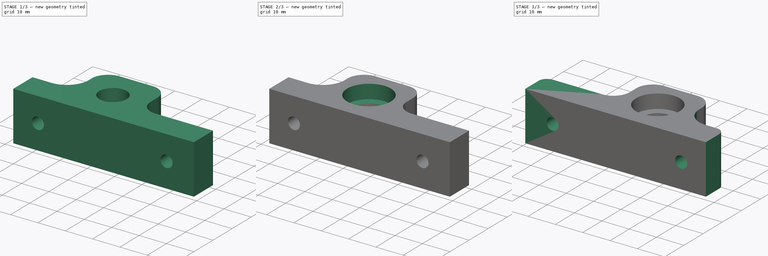
[diagram: build sequence overview — one tinted view per stage of 3, left to right]
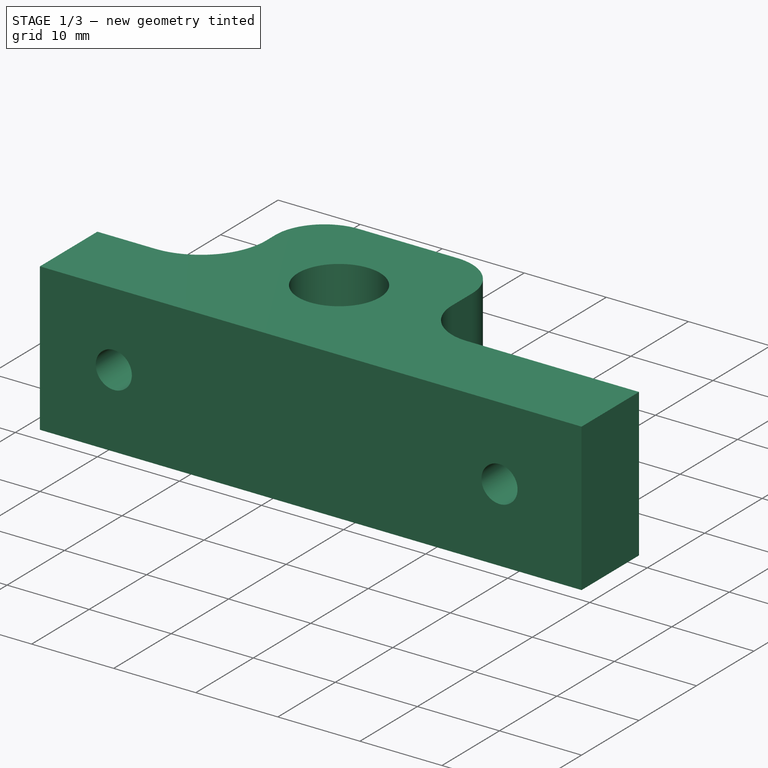
[diagram: stage 1 of 3 — iso view after this stage's code; geometry added in this stage tinted green]
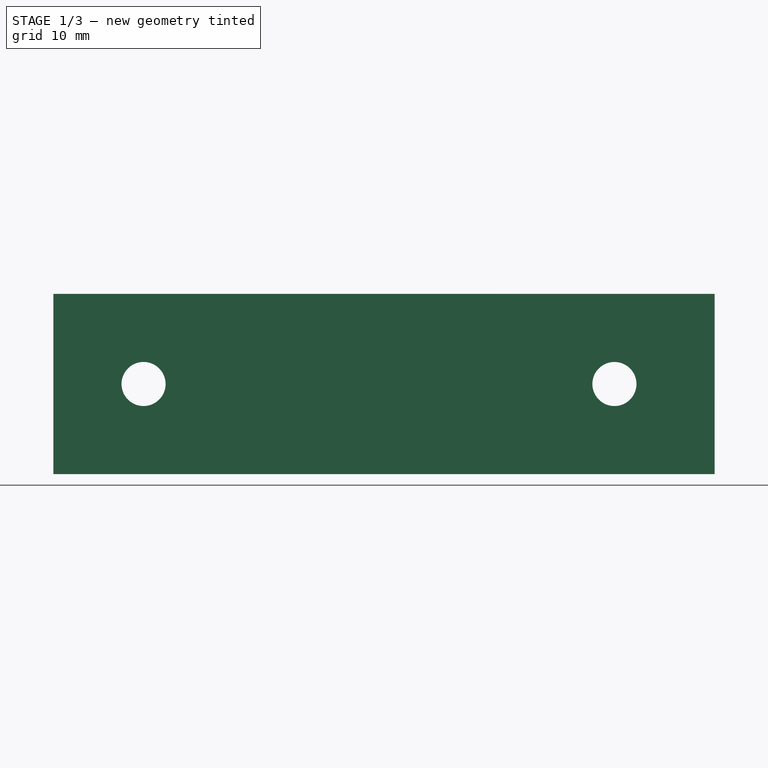
[diagram: stage 1 of 3 — front view after this stage's code; geometry added in this stage tinted green]
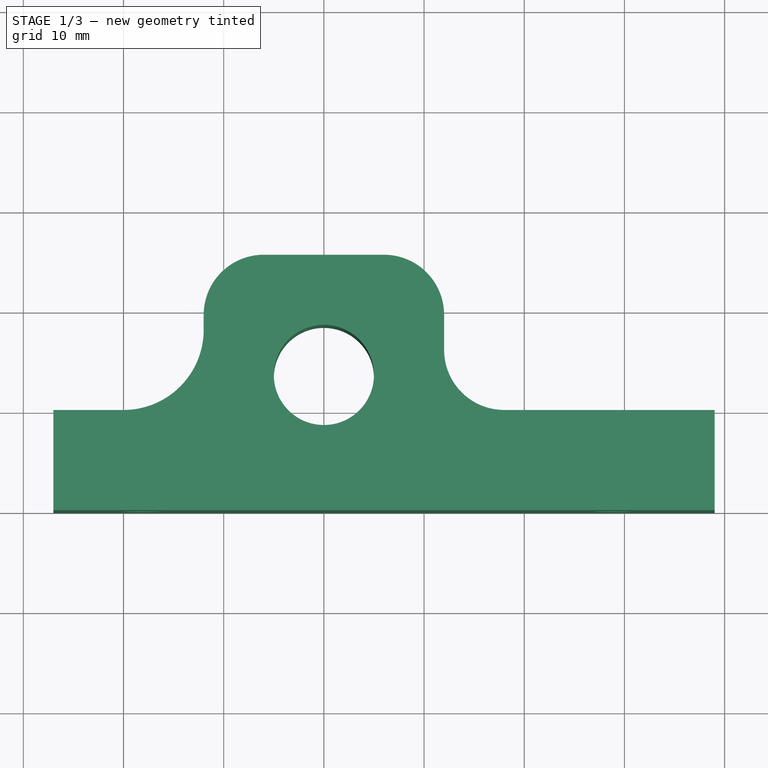
[diagram: stage 1 of 3 — top view after this stage's code; geometry added in this stage tinted green]
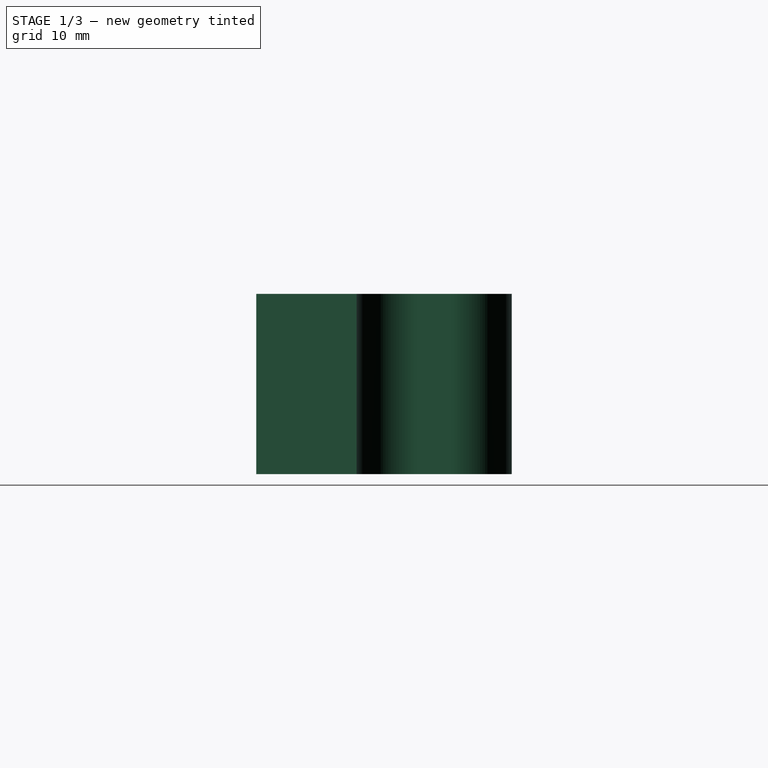
[diagram: stage 1 of 3 — right view after this stage's code; geometry added in this stage tinted green]
FCSTD DOCUMENT  (FreeCAD 0.17R5235 (Git shallow))
Label: C1061-4
License: CC-BY 3.0
LicenseURL: http://creativecommons.org/licenses/by/3.0/
objects: Sketcher::SketchObject×4, PartDesign::Pocket×3, App::Part×2, PartDesign::Pad×1, PartDesign::Fillet×1, PartDesign::Body×1, Part::Mirroring×1
note: 15 computed .brp shape members not serialized (recipe doc carries the construction recipe); baked Part::Feature solids carry a one-line shape summary decoded from their .brp

FEATURE [Sketcher::SketchObject] Sketch  label="baseShapeSketch"
  MapMode = 5
  Support = -> [XY_Plane001]
  sketch-geometry (14):
    g0: LineSegment StartX=-6 StartY=25.5 StartZ=0 EndX=6 EndY=25.5 EndZ=0
    g1: LineSegment StartX=12 StartY=19.5 StartZ=0 EndX=12 EndY=16 EndZ=0
    g2: LineSegment StartX=-27 StartY=10 StartZ=0 EndX=-20 EndY=10 EndZ=0
    g3: LineSegment StartX=39 StartY=10 StartZ=0 EndX=39 EndY=0 EndZ=0
    g4: LineSegment StartX=-27 StartY=0 StartZ=0 EndX=-27 EndY=10 EndZ=0
    g5: LineSegment StartX=18 StartY=10 StartZ=0 EndX=39 EndY=10 EndZ=0
    g6: LineSegment StartX=-12 StartY=18 StartZ=0 EndX=-12 EndY=19.5 EndZ=0
    g7: LineSegment StartX=39 StartY=0 StartZ=0 EndX=-27 EndY=0 EndZ=0
    g8: Circle [constr] CenterX=0 CenterY=13.5 CenterZ=0 NormalX=0 NormalY=0 NormalZ=1 AngleXU=0 Radius=8
    g9: Circle CenterX=0 CenterY=13.5 CenterZ=0 NormalX=0 NormalY=0 NormalZ=1 AngleXU=0 Radius=5
    g10: ArcOfCircle CenterX=18 CenterY=16 CenterZ=0 NormalX=0 NormalY=0 NormalZ=1 AngleXU=0 Radius=6 StartAngle=3.14159 EndAngle=4.71239
    g11: ArcOfCircle CenterX=-20 CenterY=18 CenterZ=0 NormalX=0 NormalY=0 NormalZ=1 AngleXU=0 Radius=8 StartAngle=4.71239 EndAngle=6.28319
    g12: ArcOfCircle CenterX=6 CenterY=19.5 CenterZ=0 NormalX=0 NormalY=0 NormalZ=1 AngleXU=0 Radius=6 StartAngle=0 EndAngle=1.5708
    g13: ArcOfCircle CenterX=-6 CenterY=19.5 CenterZ=0 NormalX=0 NormalY=0 NormalZ=1 AngleXU=0 Radius=6 StartAngle=1.5708 EndAngle=3.14159
  constraints (37):
    c: Horizontal(g0)
    c: Coincident(g5,g3)
    c: Coincident(g7,g4)
    c: Coincident(g4,g2)
    c: Horizontal(g2)
    c: Vertical(g3)
    c: Vertical(g4)
    c: Horizontal(g5)
    c: Vertical(g6)
    c: Horizontal(g7)
    c: PointOnObject(g8,g-2)
    c: Equal(g3,g4)
    c: Radius(g8) = 8
    c: Coincident(g9,g8)
    c: Radius(g9) = 5
    c: DistanceY(g3) = -10
    c: Tangent(g1,g10)
    c: Tangent(g5,g10)
    c: Tangent(g2,g11)
    c: Tangent(g6,g11)
    c: Tangent(g0,g12)
    c: Tangent(g1,g12)
    c: Tangent(g0,g13)
    c: Tangent(g6,g13)
    c: Radius(g13) = 6
    c: Equal(g12,g13)
    c: DistanceY(g0,g8) = -12
    c: Coincident(g7,g3)
    c: PointOnObject(g3,g-1)
    c: DistanceX(g6,g2) = -15
    c: Vertical(g1)
    c: DistanceX(g6,g8) = 12
    c: Radius(g11) = 8
    c: DistanceX(g8,g3) = 39
    c: DistanceX(g8,g1) = 12
    c: Radius(g10) = 6
    c: DistanceY(g-1,g8) = 13.5
FEATURE [PartDesign::Pad] Pad  label="baseShape"
  Length = 18
  Length2 = 10
  Midplane = true
  Profile = -> Sketch
  Type = 0
FEATURE [Sketcher::SketchObject] Sketch005  label="M4HolesSketch"
  ExternalGeometry = -> [Pad]
  MapMode = 5
  Placement = pos=(0,0,0) rot=(1,0,0;1.5708rad)
  Support = -> [Pad]
  sketch-geometry (2):
    g0: Circle CenterX=29 CenterY=0 CenterZ=0 NormalX=0 NormalY=0 NormalZ=1 AngleXU=0 Radius=2.2
    g1: Circle CenterX=-18 CenterY=0 CenterZ=0 NormalX=0 NormalY=0 NormalZ=1 AngleXU=0 Radius=2.2
  constraints (6):
    c: PointOnObject(g0,g-1)
    c: Equal(g0,g1)
    c: Radius(g1) = 2.2
    c: PointOnObject(g1,g-1)
    c: DistanceX(g0,g-4) = 10
    c: DistanceX(g-3,g1) = 9
FEATURE [PartDesign::Pocket] Pocket  label="M4HolesPocket"
  BaseFeature = -> Pad
  Length = 5
  Length2 = 100
  Profile = -> Sketch005
  Type = 1
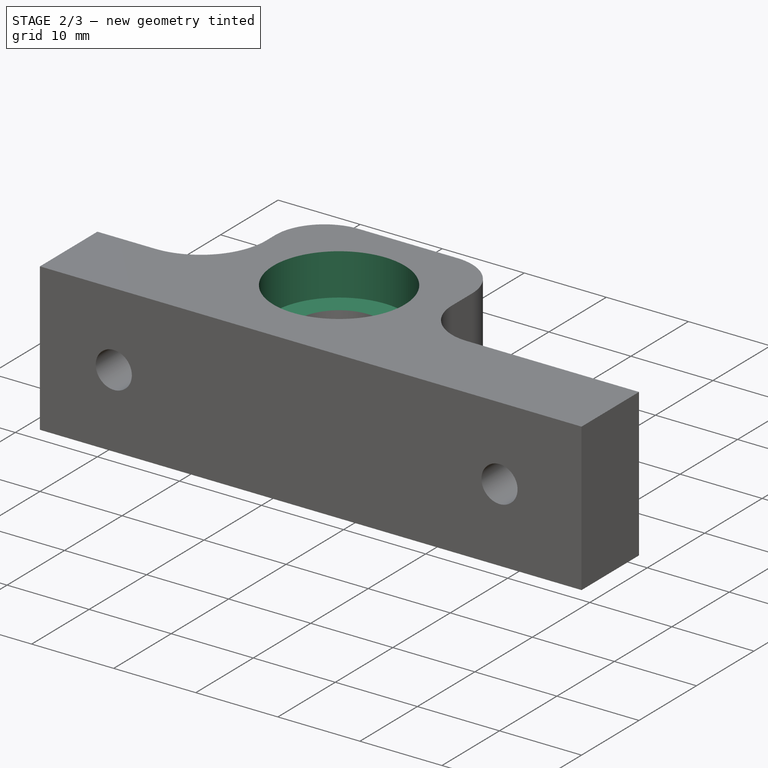
[diagram: stage 2 of 3 — iso view after this stage's code; geometry added in this stage tinted green]
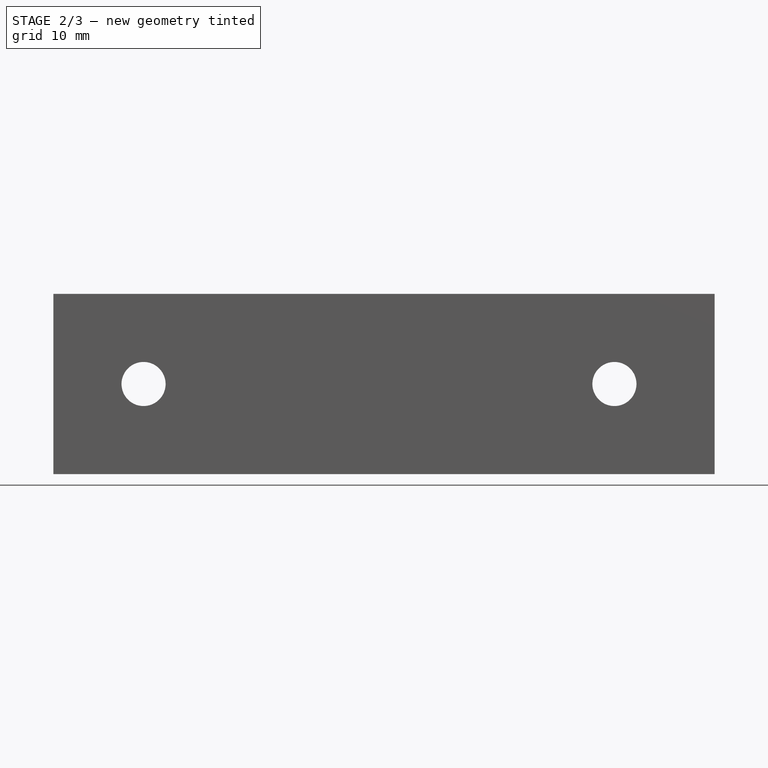
[diagram: stage 2 of 3 — front view after this stage's code; geometry added in this stage tinted green]
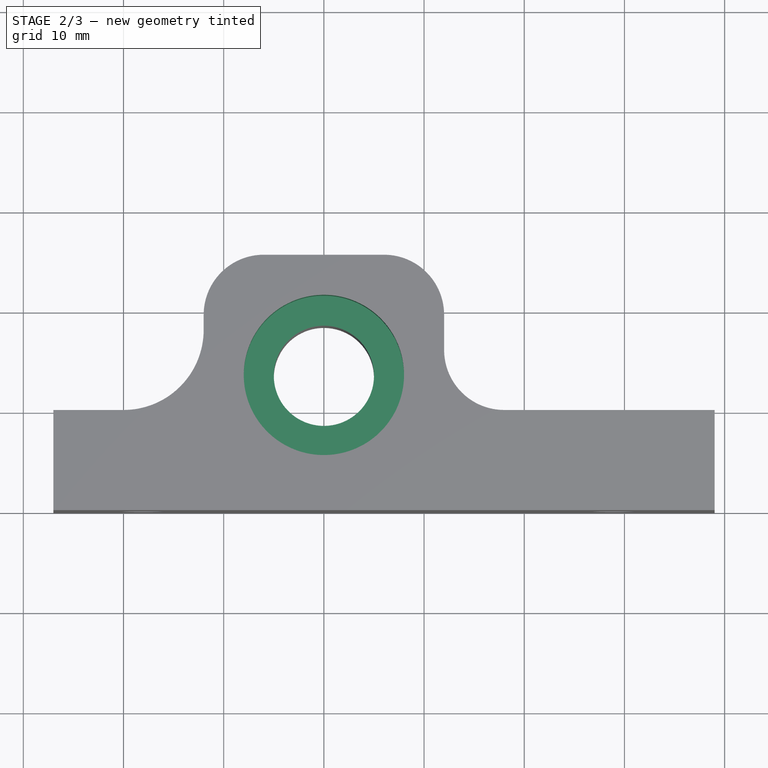
[diagram: stage 2 of 3 — top view after this stage's code; geometry added in this stage tinted green]
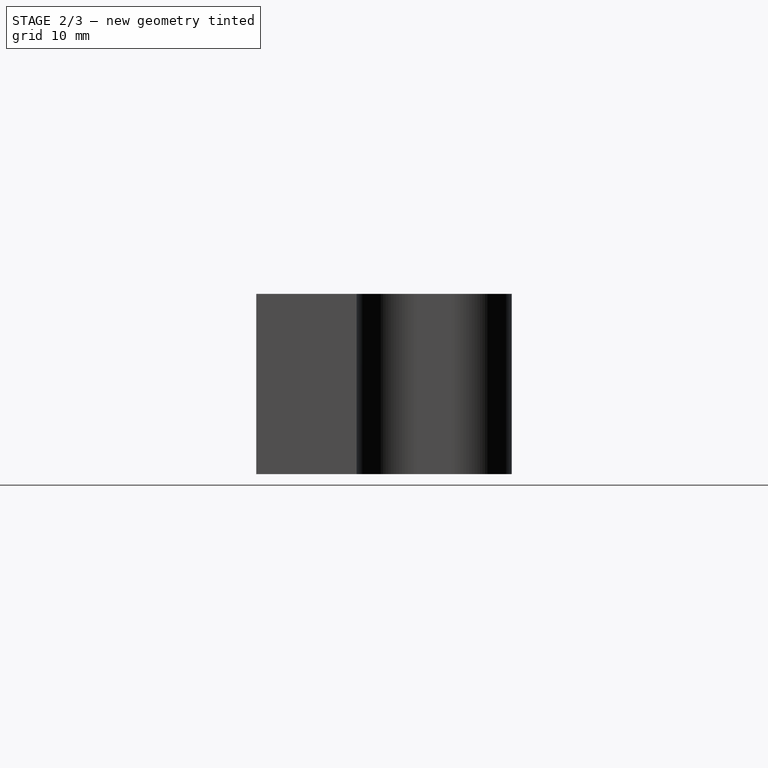
[diagram: stage 2 of 3 — right view after this stage's code; geometry added in this stage tinted green]
FEATURE [Sketcher::SketchObject] Sketch006  label="bearingPocketSketch"
  ExternalGeometry = -> [Pocket]
  MapMode = 5
  Placement = pos=(0,0,9) rot=(0,0,1;0rad)
  Support = -> [Pocket]
  sketch-geometry (1):
    g0: Circle CenterX=0 CenterY=13.5 CenterZ=0 NormalX=0 NormalY=0 NormalZ=1 AngleXU=0 Radius=8
  constraints (2):
    c: Coincident(g0,g-3)
    c: Radius(g0) = 8
FEATURE [PartDesign::Pocket] Pocket001  label="BallBearingPocket"
  BaseFeature = -> Pocket
  Length = 5.1
  Length2 = 100
  Profile = -> Sketch006
  Type = 0
FEATURE [Sketcher::SketchObject] Sketch007  label="M4CountersinkSketch"
  ExternalGeometry = -> [Pocket001]
  MapMode = 5
  Placement = pos=(0,10,0) rot=(0,0.707107,0.707107;3.14159rad)
  Support = -> [Pocket001]
  sketch-geometry (2):
    g0: Circle CenterX=18 CenterY=0 CenterZ=0 NormalX=0 NormalY=0 NormalZ=1 AngleXU=0 Radius=4.125
    g1: Circle CenterX=-29 CenterY=0 CenterZ=0 NormalX=0 NormalY=0 NormalZ=1 AngleXU=0 Radius=4.125
  constraints (6):
    c: PointOnObject(g0,g-1)
    c: DistanceX(g0,g-3) = 9
    c: PointOnObject(g1,g-1)
    c: Coincident(g1,g-4)
    c: Equal(g1,g0)
    c: Radius(g1) = 4.125
FEATURE [PartDesign::Pocket] Pocket002  label="HeadCapPocket"
  BaseFeature = -> Pocket001
  Length = 8.4
  Length2 = 100
  Midplane = true
  Profile = -> Sketch007
  Type = 0
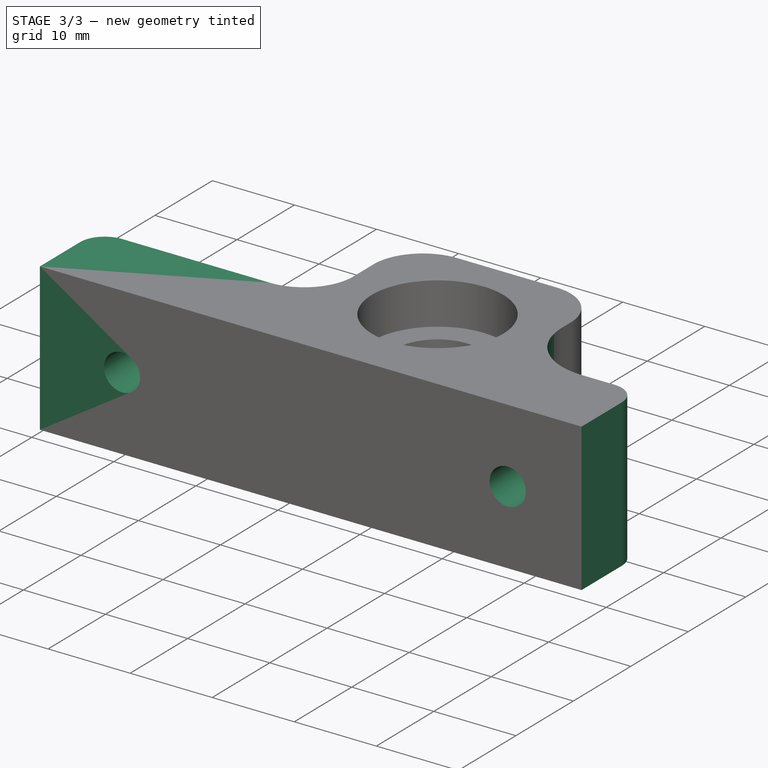
[diagram: stage 3 of 3 — iso view after this stage's code; geometry added in this stage tinted green]
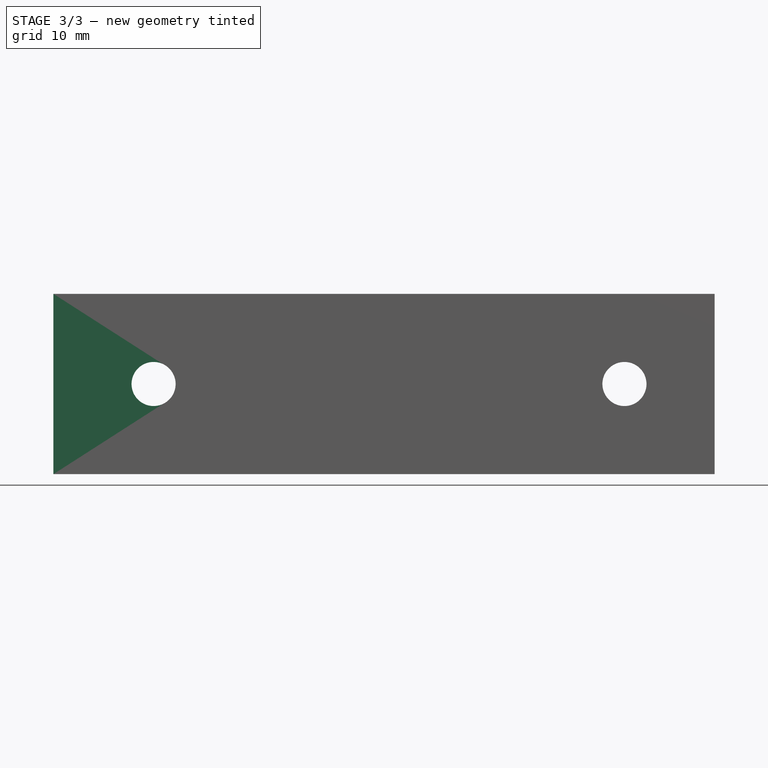
[diagram: stage 3 of 3 — front view after this stage's code; geometry added in this stage tinted green]
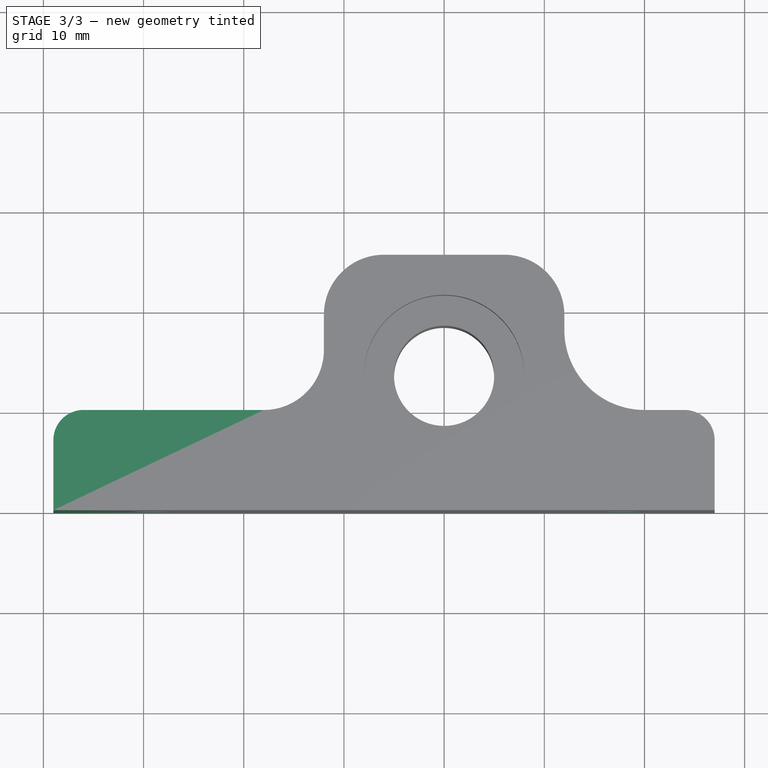
[diagram: stage 3 of 3 — top view after this stage's code; geometry added in this stage tinted green]
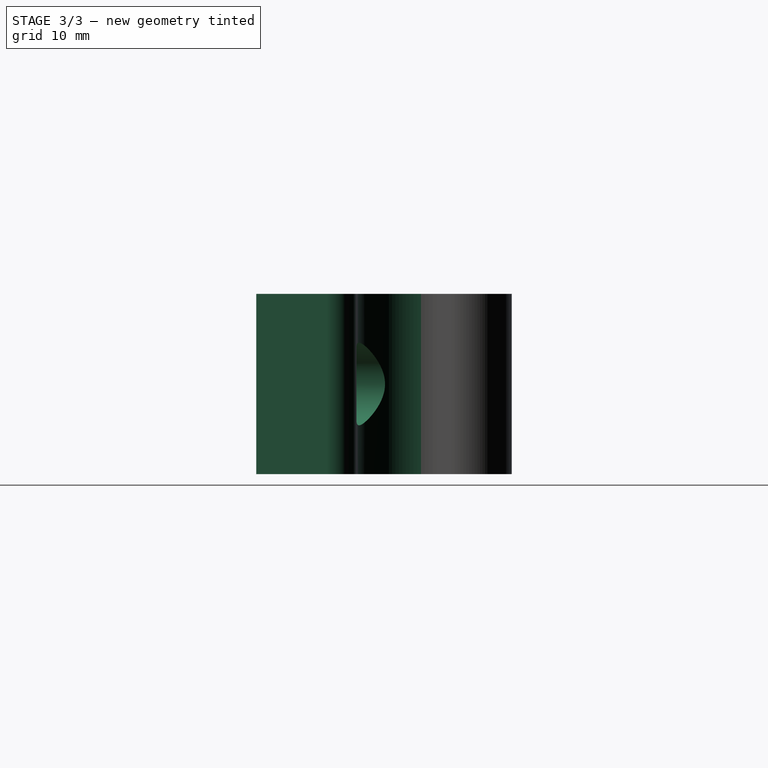
[diagram: stage 3 of 3 — right view after this stage's code; geometry added in this stage tinted green]
FEATURE [PartDesign::Fillet] Fillet
  Base = -> Pocket002 [Edge34,Edge40]
  BaseFeature = -> Pocket002
  Radius = 3
FEATURE [App::Part] Part
  License = CC BY 3.0
  LicenseURL = http://creativecommons.org/licenses/by/3.0/
  Origin = -> Origin
FEATURE [PartDesign::Body] FilletBody
  Group = -> [Sketch,Pad,Sketch005,Pocket,Sketch006,Pocket001,Sketch007,Pocket002,Fillet]
  Origin = -> Origin001
  Tip = -> Fillet
FEATURE [Part::Mirroring] Part__Mirroring  label="FilletBody (Mirror #1)"
  Base = (0,0,0)
  Normal = (1,0,0)
  Source = -> FilletBody
FEATURE [App::Part] Part001  label="Mirror"
  Group = -> [FilletBody,Part__Mirroring]
  License = CC BY 3.0
  LicenseURL = http://creativecommons.org/licenses/by/3.0/
  Origin = -> Origin002
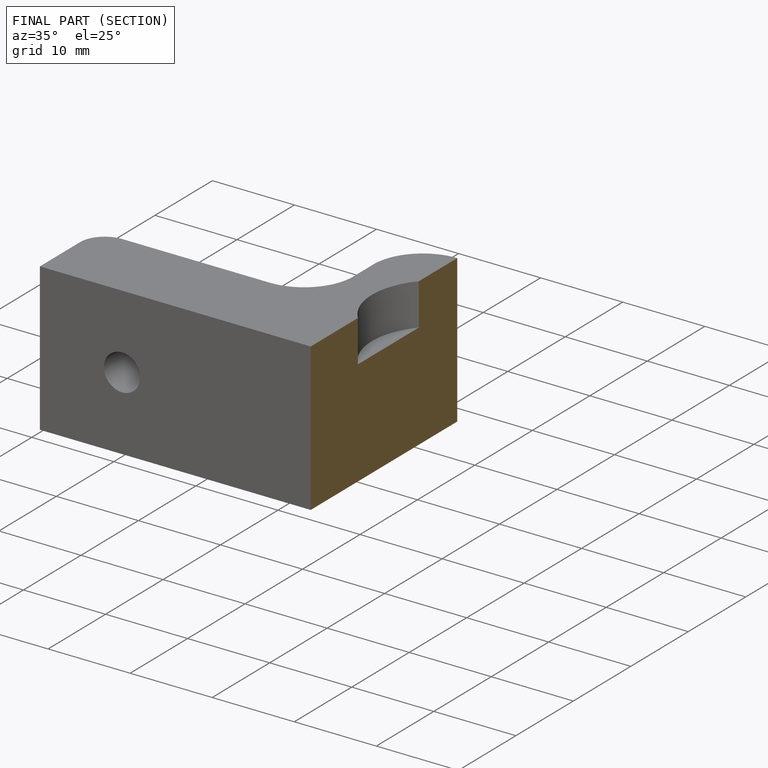
[diagram: finished part — half-section view (interior)]
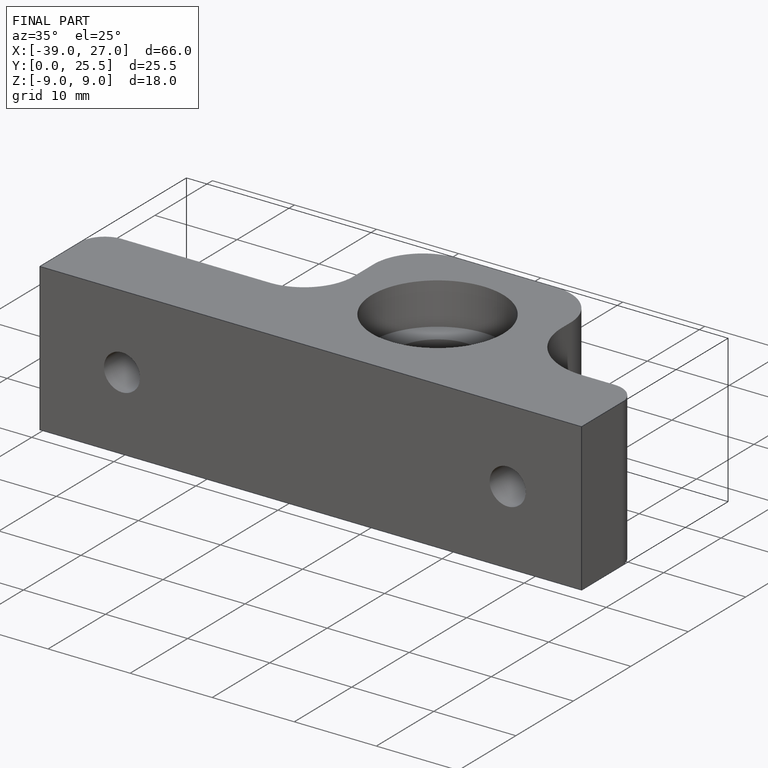
[diagram: finished part — iso view with bounding-box wireframe]
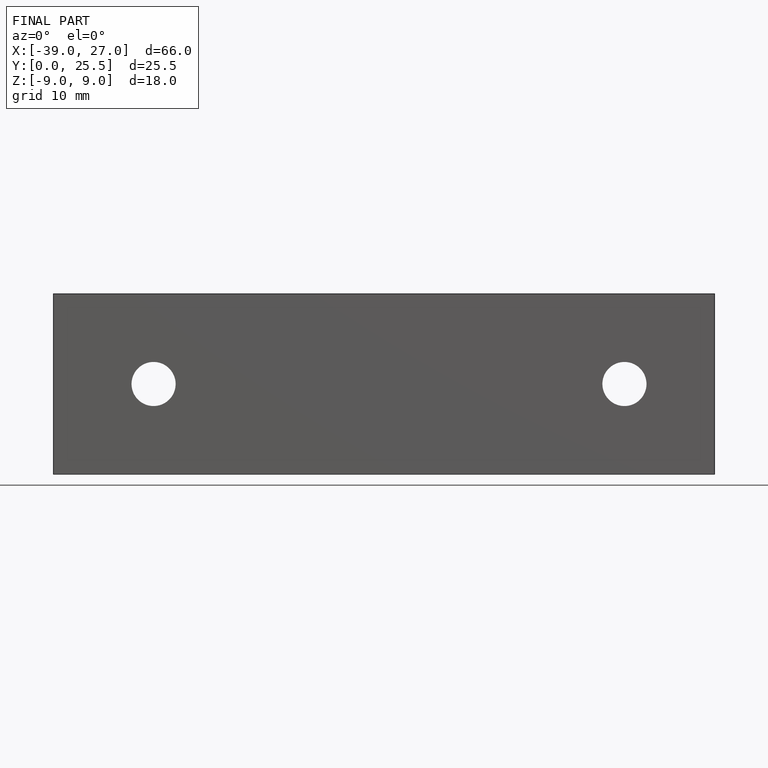
[diagram: finished part — front view with bounding-box wireframe]
